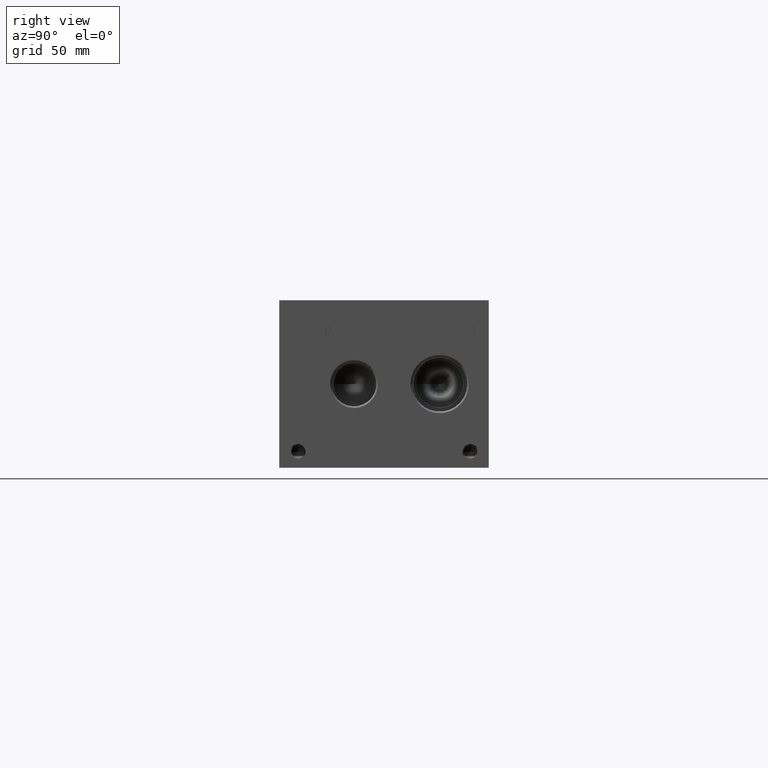
[diagram: clean part render]
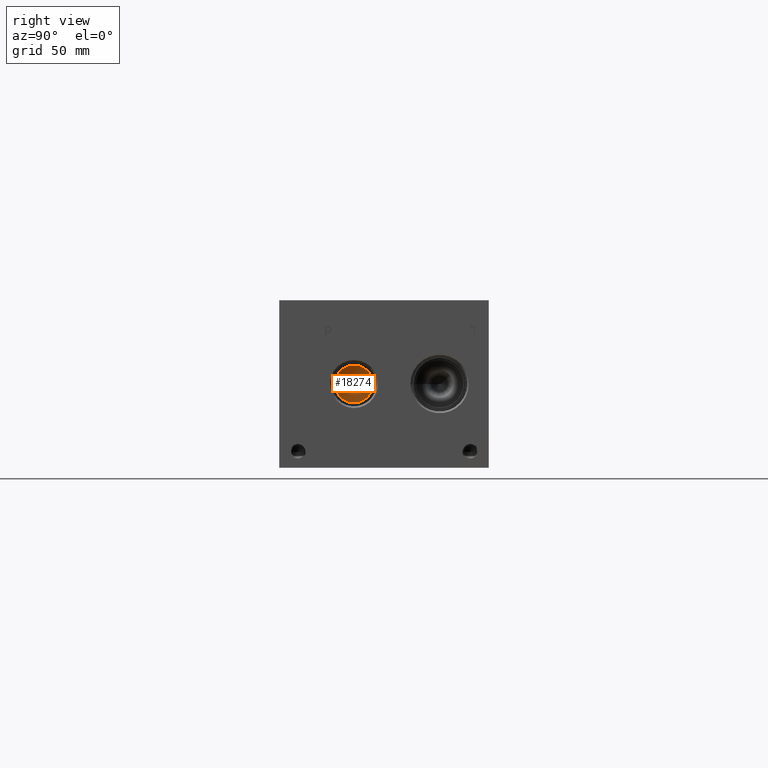
[diagram: same view with one face highlighted and labeled with its STEP entity id]
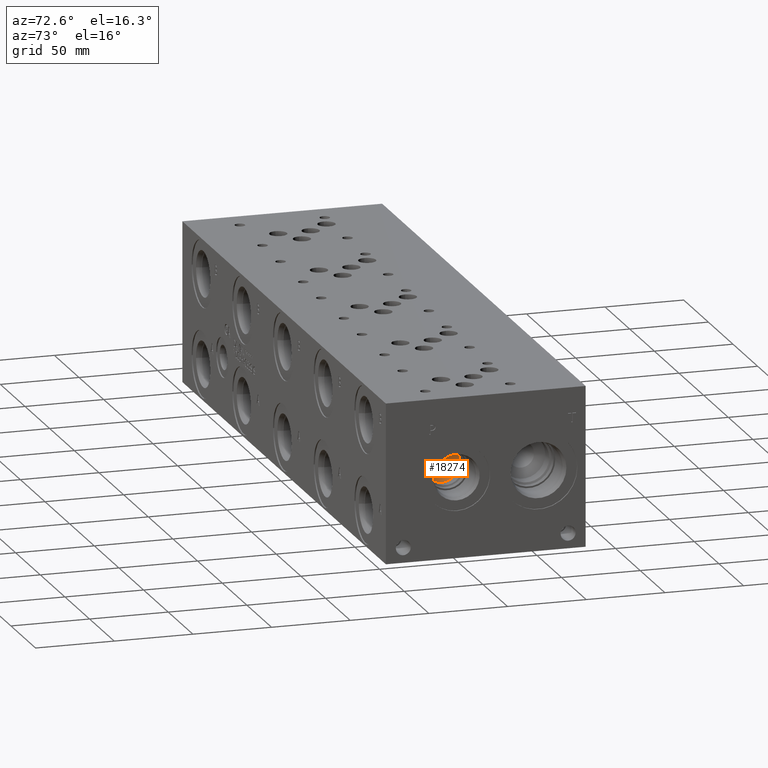
[diagram: same view with one face highlighted and labeled with its STEP entity id]
A machine part, right view. The second image highlights one B-rep face of the part: STEP entity #18274.
A second angle (auxiliary view) of the same face is appended — the face is thin or edge-on in the first view.
In plain terms, the highlighted conical surface has half-angle 60 deg.
Its self-contained STEP definition (entity closure, byte-faithful):
#31=CONICAL_SURFACE('',#19160,5.7531,1.0471975511966);
#629=CIRCLE('',#19161,11.5062);
#630=CIRCLE('',#19162,11.5062);
#2390=FACE_OUTER_BOUND('',#3450,.T.);
#3450=EDGE_LOOP('',(#15103,#15104,#15105,#15106));
#5152=LINE('',#30903,#6717);
#6717=VECTOR('',#22417,5.7531);
#8242=VERTEX_POINT('',#30899);
#8243=VERTEX_POINT('',#30900);
#8244=VERTEX_POINT('',#30902);
#10658=EDGE_CURVE('',#8242,#8243,#629,.T.);
#10659=EDGE_CURVE('',#8243,#8244,#5152,.T.);
#10660=EDGE_CURVE('',#8243,#8242,#630,.T.);
#15103=ORIENTED_EDGE('',*,*,#10658,.T.);
#15104=ORIENTED_EDGE('',*,*,#10659,.T.);
#15105=ORIENTED_EDGE('',*,*,#10659,.F.);
#15106=ORIENTED_EDGE('',*,*,#10660,.T.);
#18274=ADVANCED_FACE('',(#2390),#31,.F.);
#19160=AXIS2_PLACEMENT_3D('',#30898,#22413,#22414);
#19161=AXIS2_PLACEMENT_3D('',#30901,#22415,#22416);
#19162=AXIS2_PLACEMENT_3D('',#30904,#22418,#22419);
#22413=DIRECTION('center_axis',(1.,0.,0.));
#22414=DIRECTION('ref_axis',(0.,1.,0.));
#22415=DIRECTION('center_axis',(1.,0.,0.));
#22416=DIRECTION('ref_axis',(0.,1.,0.));
#22417=DIRECTION('',(-0.5,0.866025403784439,1.06057523872491E-16));
#22418=DIRECTION('center_axis',(1.,0.,0.));
#22419=DIRECTION('ref_axis',(0.,1.,0.));
#30898=CARTESIAN_POINT('Origin',(378.571226166325,45.2882,50.8));
#30899=CARTESIAN_POINT('',(381.89278,56.7944,50.8));
#30900=CARTESIAN_POINT('',(381.89278,33.782,50.8));
#30901=CARTESIAN_POINT('Origin',(381.89278,45.2882,50.8));
#30902=CARTESIAN_POINT('',(375.24967233265,45.2882,50.8));
#30903=CARTESIAN_POINT('',(378.571226166325,39.5351,50.8));
#30904=CARTESIAN_POINT('Origin',(381.89278,45.2882,50.8));